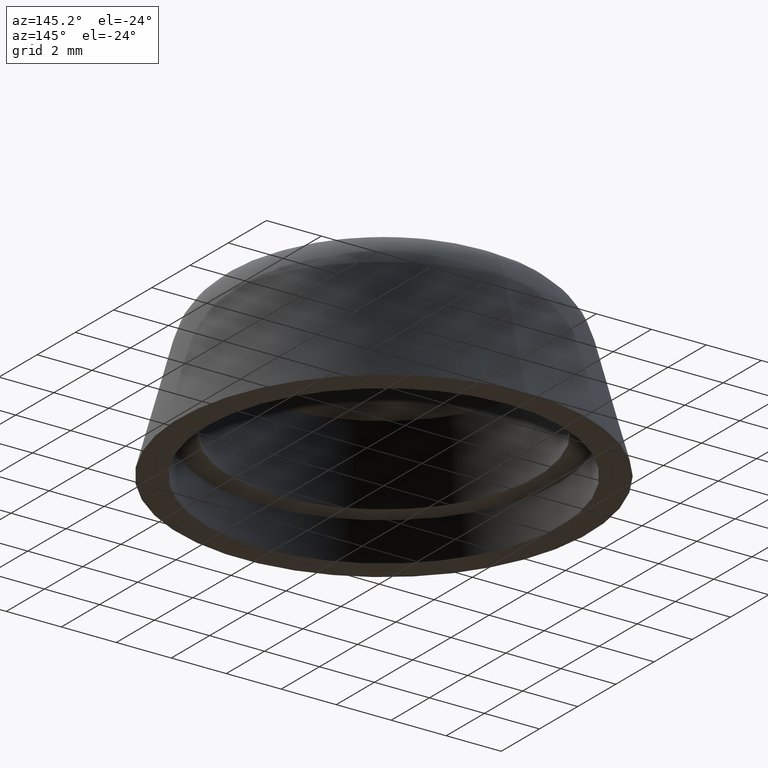
[diagram: clean part render]
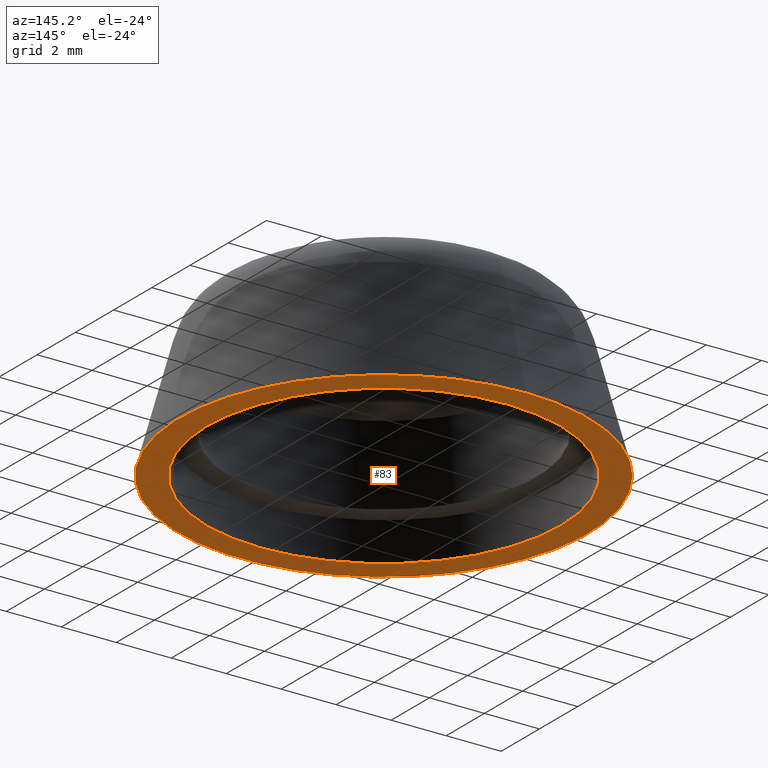
[diagram: same view with one face highlighted and labeled with its STEP entity id]
A machine part, auxiliary view. The second image highlights one B-rep face of the part: STEP entity #83.
In plain terms, the highlighted planar face has unit normal (0, -0, -1).
Its self-contained STEP definition (entity closure, byte-faithful):
#83 = ADVANCED_FACE( '', ( #108, #109 ), #110, .T. );
#108 = FACE_OUTER_BOUND( '', #168, .T. );
#109 = FACE_BOUND( '', #169, .T. );
#110 = PLANE( '', #170 );
#168 = EDGE_LOOP( '', ( #207 ) );
#169 = EDGE_LOOP( '', ( #208 ) );
#170 = AXIS2_PLACEMENT_3D( '', #209, #210, #211 );
#207 = ORIENTED_EDGE( '', *, *, #220, .T. );
#208 = ORIENTED_EDGE( '', *, *, #218, .F. );
#209 = CARTESIAN_POINT( '', ( -1.18220466621713E-015, -6.43583500677368, 0.000000000000000 ) );
#210 = DIRECTION( '', ( 0.000000000000000, -6.12303176911189E-017, -1.00000000000000 ) );
#211 = DIRECTION( '', ( 0.000000000000000, 1.00000000000000, -6.12303176911189E-017 ) );
#218 = EDGE_CURVE( '', #231, #231, #232, .T. );
#220 = EDGE_CURVE( '', #235, #235, #236, .T. );
#231 = VERTEX_POINT( '', #247 );
#232 = CIRCLE( '', #248, 6.43583500677368 );
#235 = VERTEX_POINT( '', #251 );
#236 = CIRCLE( '', #252, 7.43583500677366 );
#247 = CARTESIAN_POINT( '', ( 0.000000000000000, 6.43583500677368, -1.26142996006078E-015 ) );
#248 = AXIS2_PLACEMENT_3D( '', #268, #269, #270 );
#251 = CARTESIAN_POINT( '', ( 0.000000000000000, 7.43583500677366, -1.32266027775190E-015 ) );
#252 = AXIS2_PLACEMENT_3D( '', #274, #275, #276 );
#268 = CARTESIAN_POINT( '', ( 0.000000000000000, -2.75536429610035E-016, -8.67361737988404E-016 ) );
#269 = DIRECTION( '', ( 0.000000000000000, -6.12303176911189E-017, -1.00000000000000 ) );
#270 = DIRECTION( '', ( 0.000000000000000, 1.00000000000000, -6.12303176911189E-017 ) );
#274 = CARTESIAN_POINT( '', ( 0.000000000000000, -2.75536429610035E-016, -8.67361737988404E-016 ) );
#275 = DIRECTION( '', ( 0.000000000000000, -6.12303176911189E-017, -1.00000000000000 ) );
#276 = DIRECTION( '', ( 0.000000000000000, 1.00000000000000, -6.12303176911189E-017 ) );